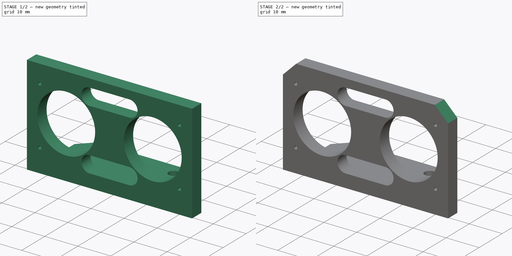
[diagram: build sequence overview — one tinted view per stage of 2, left to right]
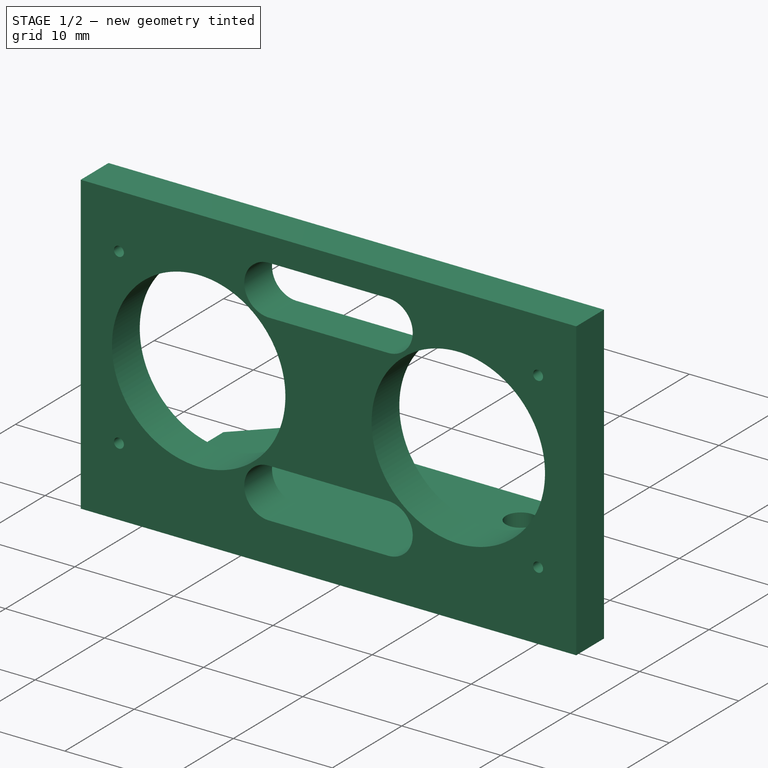
[diagram: stage 1 of 2 — iso view after this stage's code; geometry added in this stage tinted green]
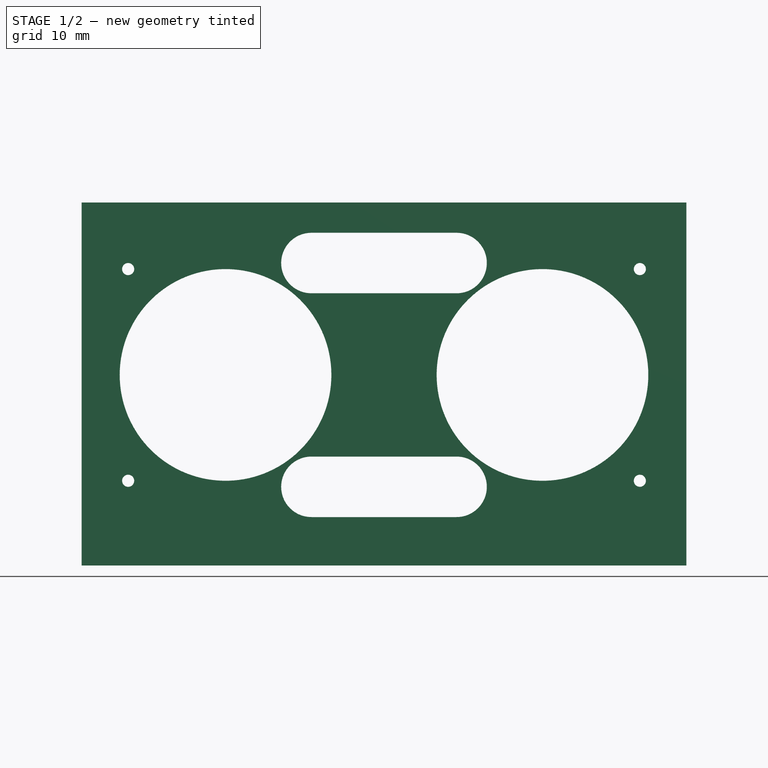
[diagram: stage 1 of 2 — front view after this stage's code; geometry added in this stage tinted green]
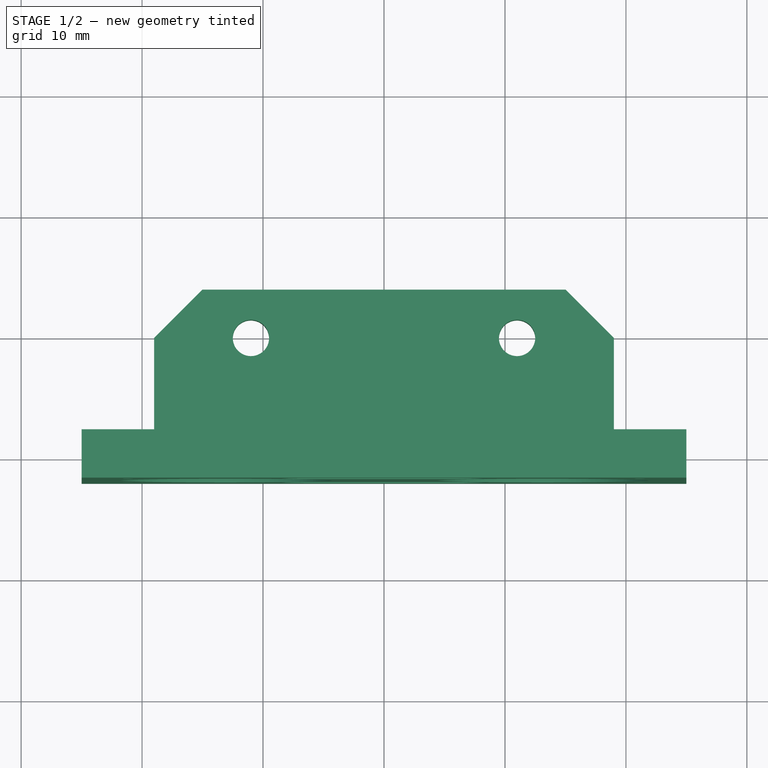
[diagram: stage 1 of 2 — top view after this stage's code; geometry added in this stage tinted green]
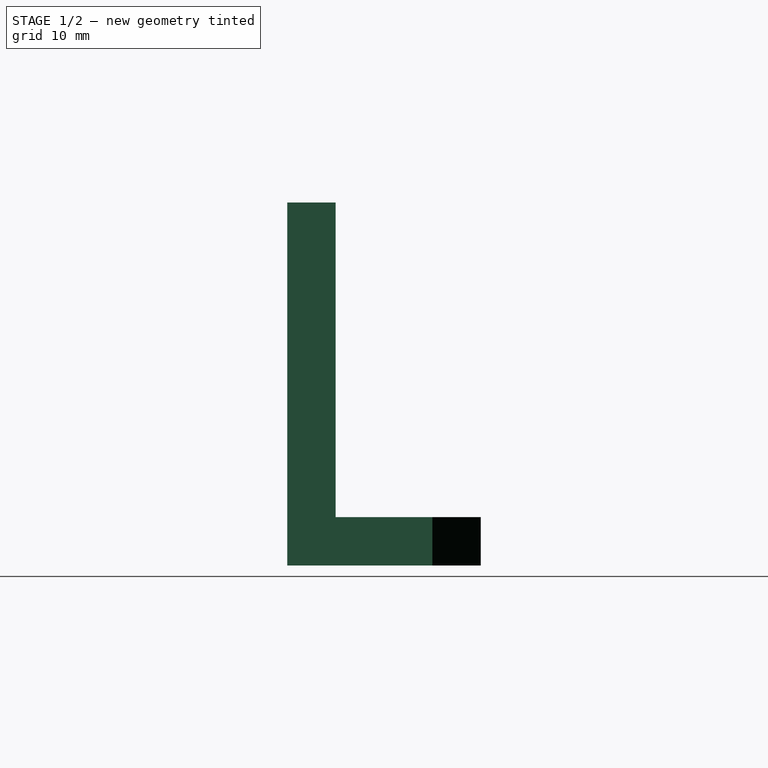
[diagram: stage 1 of 2 — right view after this stage's code; geometry added in this stage tinted green]
FCSTD DOCUMENT  (FreeCAD 0.21R33771 (Git))
Label: Ultrasonics_holder2
License: All rights reserved
LicenseURL: http://en.wikipedia.org/wiki/All_rights_reserved
objects: Sketcher::SketchObject×2, PartDesign::Pad×2, PartDesign::Fillet×1, PartDesign::Chamfer×1, PartDesign::Body×1
note: 11 computed .brp shape members not serialized (recipe doc carries the construction recipe); baked Part::Feature solids carry a one-line shape summary decoded from their .brp

FEATURE [Sketcher::SketchObject] Sketch
  FullyConstrained = true
  MapMode = 5
  Support = -> [XY_Plane]
  sketch-geometry (10):
    g0: Circle CenterX=-11 CenterY=0 CenterZ=0 NormalX=0 NormalY=0 NormalZ=1 AngleXU=0 Radius=1.5
    g1: Circle CenterX=11 CenterY=0 CenterZ=0 NormalX=0 NormalY=0 NormalZ=1 AngleXU=0 Radius=1.5
    g2: LineSegment StartX=-11 StartY=0 StartZ=0 EndX=0 EndY=0 EndZ=0
    g3: LineSegment StartX=11 StartY=0 StartZ=0 EndX=0 EndY=0 EndZ=0
    g4: LineSegment StartX=-15 StartY=4 StartZ=0 EndX=15 EndY=4 EndZ=0
    g5: LineSegment StartX=19 StartY=3.931e-13 StartZ=0 EndX=19 EndY=-8 EndZ=0
    g6: LineSegment StartX=19 StartY=-8 StartZ=0 EndX=-19 EndY=-8 EndZ=0
    g7: LineSegment StartX=-19 StartY=-8 StartZ=0 EndX=-19 EndY=3.917e-13 EndZ=0
    g8: LineSegment StartX=-19 StartY=3.917e-13 StartZ=0 EndX=-15 EndY=4 EndZ=0
    g9: LineSegment StartX=19 StartY=3.931e-13 StartZ=0 EndX=15 EndY=4 EndZ=0
  constraints (28):
    c: PointOnObject(g1,g-1)
    c: Equal(g0,g1)
    c: Coincident(g3,g1)
    c: Coincident(g3,g2)
    c: Equal(g2,g3)
    c: Coincident(g0,g2)
    c: Coincident(g2,g-1)
    c: DistanceX(g0,g1) = 22
    c: Diameter(g0) = 3
    c: Coincident(g5,g6)
    c: Coincident(g6,g7)
    c: Horizontal(g4)
    c: Horizontal(g6)
    c: Vertical(g5)
    c: Vertical(g7)
    c: Coincident(g4,g8)
    c: Coincident(g7,g8)
    c: Coincident(g4,g9)
    c: Coincident(g5,g9)
    c: Angle(g7,g8) = 2.35619
    c: Angle(g9,g5) = 2.35619
    c: DistanceX(g7,g4) = 4
    c: DistanceX(g4,g5) = 4
    c: DistanceY(g2,g4) = 4
    c: DistanceY(g6,g2) = 8
    c: DistanceX(g1,g5) = 8
    c: DistanceX(g6,g0) = 8
    c: Horizontal(g2)
FEATURE [PartDesign::Pad] Pad
  Direction = (0,0,1)
  Length = 4
  Length2 = 10
  Profile = -> Sketch
  ReferenceAxis = -> Sketch [N_Axis]
  Type = 0
FEATURE [Sketcher::SketchObject] Sketch001
  ExternalGeometry = -> [Pad]
  FullyConstrained = true
  MapMode = 5
  Placement = pos=(0,-8,0) rot=(1,0,0;1.5708rad)
  Support = -> [Pad]
  sketch-geometry (31):
    g0: LineSegment StartX=-25 StartY=30 StartZ=0 EndX=25 EndY=30 EndZ=0
    g1: LineSegment StartX=25 StartY=30 StartZ=0 EndX=25 EndY=0 EndZ=0
    g2: LineSegment StartX=-25 StartY=0 StartZ=0 EndX=-25 EndY=30 EndZ=0
    g3: LineSegment StartX=25 StartY=0 StartZ=0 EndX=0 EndY=0 EndZ=0
    g4: LineSegment StartX=0 StartY=0 StartZ=0 EndX=-25 EndY=0 EndZ=0
    g5: LineSegment StartX=-21.15 StartY=24.5 StartZ=0 EndX=21.15 EndY=24.5 EndZ=0
    g6: LineSegment StartX=21.15 StartY=24.5 StartZ=0 EndX=21.15 EndY=7 EndZ=0
    g7: LineSegment StartX=-21.15 StartY=7 StartZ=0 EndX=-21.15 EndY=24.5 EndZ=0
    g8: Circle CenterX=-21.15 CenterY=24.5 CenterZ=0 NormalX=0 NormalY=0 NormalZ=1 AngleXU=0 Radius=0.5
    g9: Circle CenterX=-21.15 CenterY=7 CenterZ=0 NormalX=0 NormalY=0 NormalZ=1 AngleXU=0 Radius=0.5
    g10: Circle CenterX=21.15 CenterY=7 CenterZ=0 NormalX=0 NormalY=0 NormalZ=1 AngleXU=0 Radius=0.5
    g11: Circle CenterX=21.15 CenterY=24.5 CenterZ=0 NormalX=0 NormalY=0 NormalZ=1 AngleXU=0 Radius=0.5
    g12: LineSegment StartX=21.15 StartY=7 StartZ=0 EndX=0 EndY=7 EndZ=0
    g13: LineSegment StartX=0 StartY=7 StartZ=0 EndX=-21.15 EndY=7 EndZ=0
    g14: LineSegment StartX=0 StartY=0 StartZ=0 EndX=0 EndY=7 EndZ=0
    g15: LineSegment StartX=-13.1 StartY=15.75 StartZ=0 EndX=0 EndY=15.75 EndZ=0
    g16: LineSegment StartX=0 StartY=15.75 StartZ=0 EndX=13.1 EndY=15.75 EndZ=0
    g17: LineSegment StartX=0 StartY=7 StartZ=0 EndX=0 EndY=15.75 EndZ=0
    g18: LineSegment StartX=0 StartY=15.75 StartZ=0 EndX=0 EndY=24.5 EndZ=0
    g19: LineSegment StartX=-6 StartY=4 StartZ=0 EndX=0 EndY=4 EndZ=0
    g20: LineSegment StartX=6 StartY=4 StartZ=0 EndX=0 EndY=4 EndZ=0
    g21: LineSegment StartX=-6 StartY=27.5 StartZ=0 EndX=0 EndY=27.5 EndZ=0
    g22: LineSegment StartX=0 StartY=27.5 StartZ=0 EndX=6 EndY=27.5 EndZ=0
    g23: ArcOfCircle CenterX=-6 CenterY=25 CenterZ=0 NormalX=0 NormalY=0 NormalZ=1 AngleXU=0 Radius=2.5 StartAngle=1.5708 EndAngle=4.71239
    g24: ArcOfCircle CenterX=6 CenterY=25 CenterZ=0 NormalX=0 NormalY=0 NormalZ=1 AngleXU=0 Radius=2.5 StartAngle=4.71239 EndAngle=7.85398
    g25: ArcOfCircle CenterX=-6 CenterY=6.5 CenterZ=0 NormalX=0 NormalY=0 NormalZ=1 AngleXU=0 Radius=2.5 StartAngle=1.5708 EndAngle=4.71239
    g26: ArcOfCircle CenterX=6 CenterY=6.5 CenterZ=0 NormalX=0 NormalY=0 NormalZ=1 AngleXU=0 Radius=2.5 StartAngle=4.71239 EndAngle=7.85398
    g27: LineSegment StartX=-6 StartY=9 StartZ=0 EndX=6 EndY=9 EndZ=0
    g28: LineSegment StartX=-6 StartY=22.5 StartZ=0 EndX=6 EndY=22.5 EndZ=0
    g29: Circle CenterX=-13.1 CenterY=15.75 CenterZ=0 NormalX=0 NormalY=0 NormalZ=1 AngleXU=0 Radius=8.75
    g30: Circle CenterX=13.1 CenterY=15.75 CenterZ=0 NormalX=0 NormalY=0 NormalZ=1 AngleXU=0 Radius=8.75
  constraints (83):
    c: Coincident(g0,g1)
    c: Coincident(g1,g3)
    c: Coincident(g4,g2)
    c: Coincident(g2,g0)
    c: Horizontal(g0)
    c: Vertical(g1)
    c: Vertical(g2)
    c: Coincident(g3,g4)
    c: Horizontal(g3)
    c: Horizontal(g4)
    c: Equal(g4,g3)
    c: Coincident(g3,g-1)
    c: DistanceX(g2,g1) = 50
    c: DistanceY(g2,g2) = 30
    c: Coincident(g5,g6)
    c: Coincident(g6,g12)
    c: Coincident(g13,g7)
    c: Coincident(g7,g5)
    c: Horizontal(g5)
    c: Vertical(g6)
    c: Vertical(g7)
    c: DistanceY(g7,g7) = 17.5
    c: DistanceX(g5,g5) = 42.3
    c: Coincident(g8,g5)
    c: Coincident(g9,g13)
    c: Coincident(g10,g6)
    c: Coincident(g11,g5)
    c: Equal(g8,g9)
    c: Equal(g9,g11)
    c: Equal(g11,g10)
    c: Diameter(g8) = 1
    c: Coincident(g12,g13)
    c: Horizontal(g12)
    c: Horizontal(g13)
    c: Equal(g13,g12)
    c: Coincident(g14,g3)
    c: PointOnObject(g14,g-2)
    c: Coincident(g14,g12)
    c: DistanceY(g-3,g12) = 3
    c: Horizontal(g15)
    c: Coincident(g16,g15)
    c: Horizontal(g16)
    c: Equal(g15,g16)
    c: Coincident(g17,g12)
    c: Coincident(g17,g15)
    c: Vertical(g17)
    c: Coincident(g18,g15)
    c: PointOnObject(g18,g5)
    c: Vertical(g18)
    c: Equal(g18,g17)
    c: Coincident(g20,g19)
    c: Horizontal(g20)
    c: PointOnObject(g19,g14)
    c: Equal(g19,g20)
    c: Coincident(g21,g22)
    c: Horizontal(g21)
    c: Horizontal(g22)
    c: PointOnObject(g21,g-2)
    c: Equal(g21,g22)
    c: DistanceY(g18,g21) = 3
    c: Tangent(g21,g23) = 1.5708
    c: Tangent(g22,g24) = 1.5708
    c: Equal(g23,g24)
    c: DistanceX(g23,g24) = 12
    c: Tangent(g19,g25) = -1.5708
    c: Tangent(g20,g26) = 1.5708
    c: Equal(g25,g26)
    c: Equal(g26,g23)
    c: PointOnObject(g19,g-3)
    c: Horizontal(g19)
    c: Equal(g19,g21)
    c: Horizontal(g27)
    c: Tangent(g27,g25) = 1.5708
    c: Coincident(g27,g26)
    c: Horizontal(g28)
    c: Coincident(g24,g28)
    c: Tangent(g28,g23) = -1.5708
    c: DistanceY(g23,g21) = 5
    c: Coincident(g29,g15)
    c: Coincident(g30,g16)
    c: Equal(g29,g30)
    c: Diameter(g29) = 17.5
    c: DistanceX(g29,g30) = 26.2
FEATURE [PartDesign::Pad] Pad001
  BaseFeature = -> Pad
  Direction = (0,-1,2e-16)
  Length = 4
  Length2 = 10
  Profile = -> Sketch001
  ReferenceAxis = -> Sketch001 [N_Axis]
  Type = 0
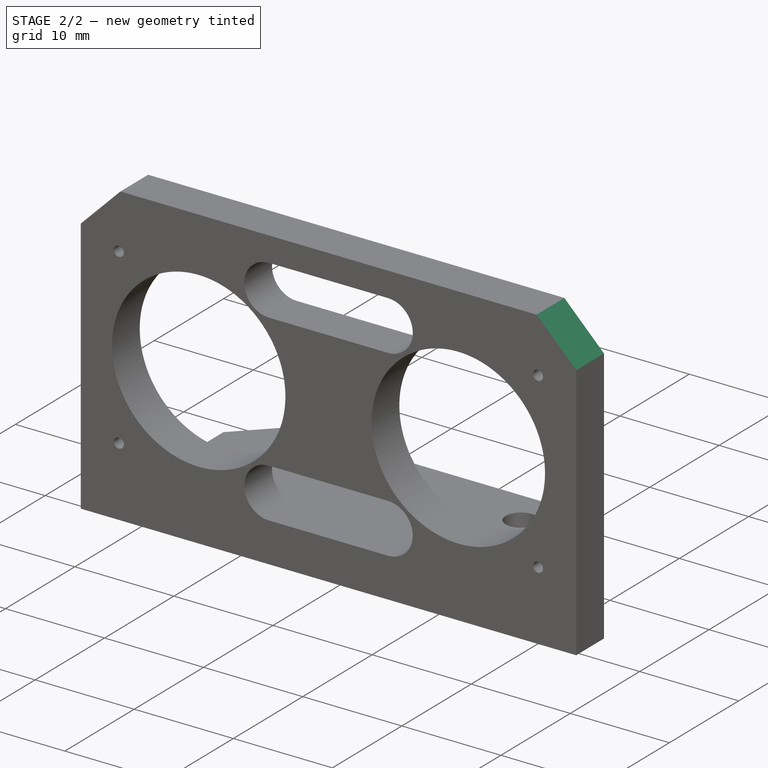
[diagram: stage 2 of 2 — iso view after this stage's code; geometry added in this stage tinted green]
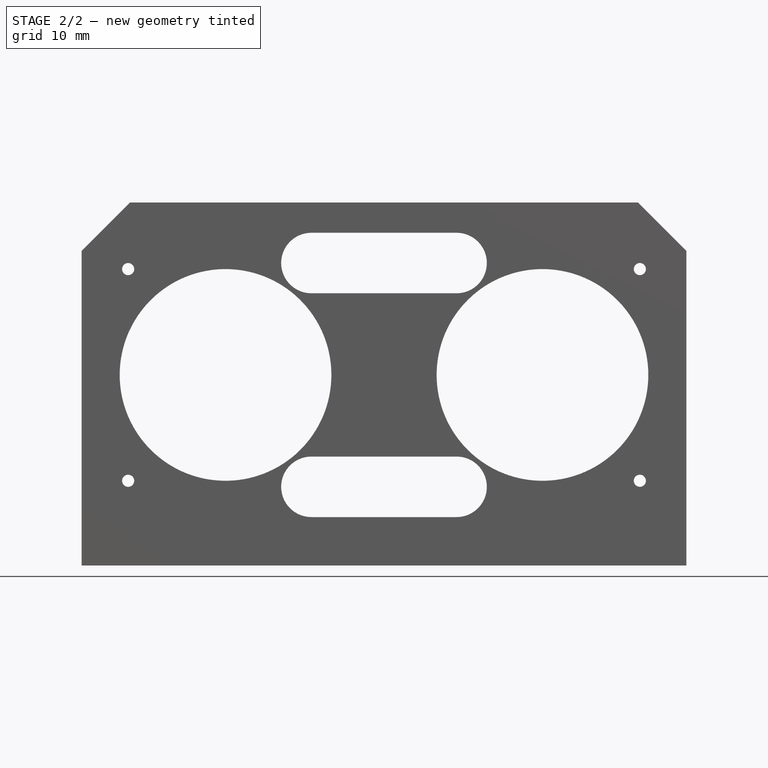
[diagram: stage 2 of 2 — front view after this stage's code; geometry added in this stage tinted green]
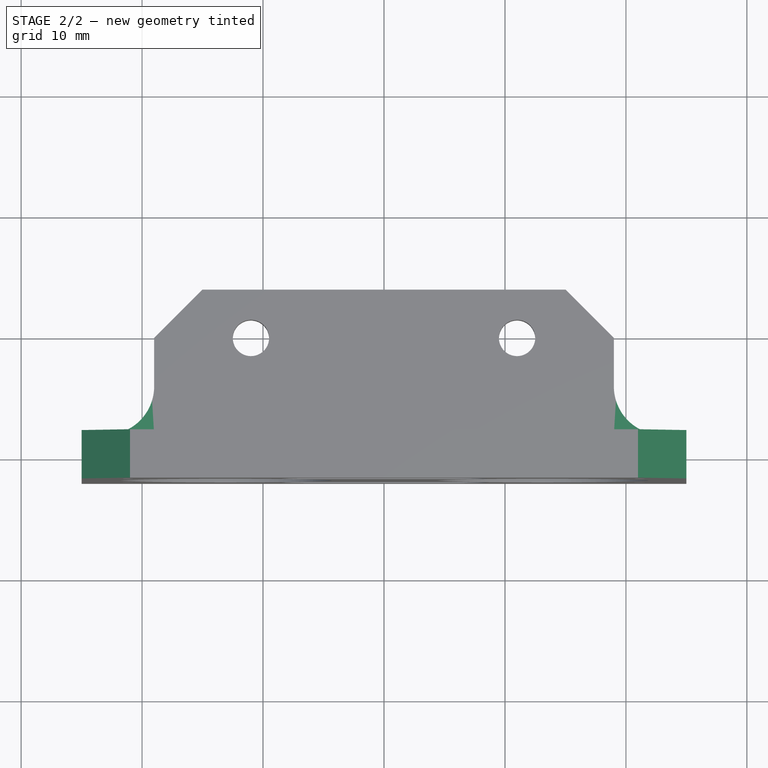
[diagram: stage 2 of 2 — top view after this stage's code; geometry added in this stage tinted green]
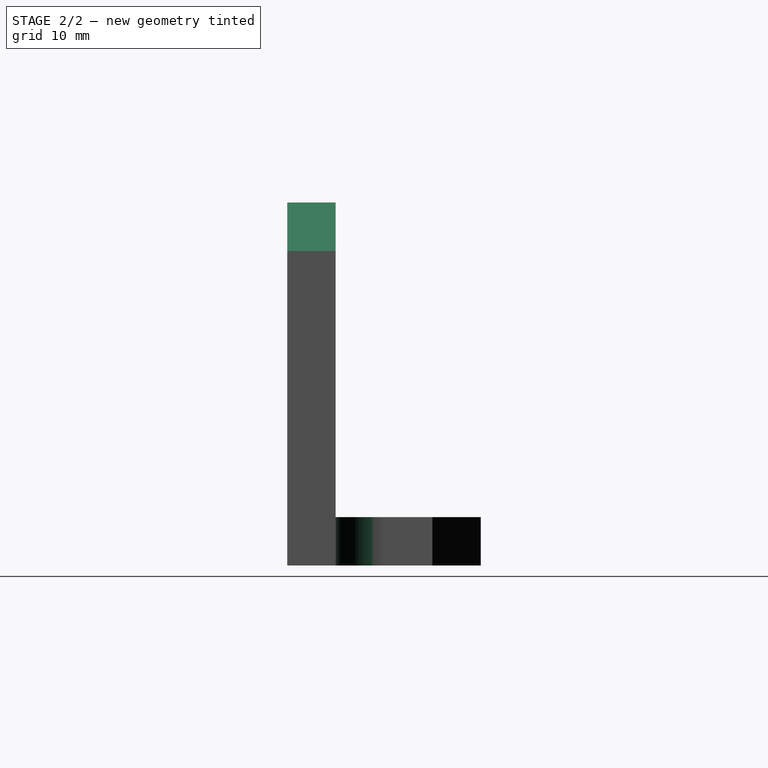
[diagram: stage 2 of 2 — right view after this stage's code; geometry added in this stage tinted green]
FEATURE [PartDesign::Fillet] Fillet
  Base = -> Pad001 [Edge2,Edge10]
  BaseFeature = -> Pad001
  Radius = 4
  SupportTransform = false
  UseAllEdges = false
FEATURE [PartDesign::Chamfer] Chamfer
  Angle = 45
  Base = -> Fillet [Edge86,Edge68]
  BaseFeature = -> Fillet
  ChamferType = 0
  FlipDirection = false
  Size = 4
  Size2 = 1
  SupportTransform = false
  UseAllEdges = false
FEATURE [PartDesign::Body] Body
  Group = -> [Sketch,Pad,Sketch001,Pad001,Fillet,Chamfer]
  Origin = -> Origin
  Placement = pos=(0,0,0) rot=(1,0,0;1.5708rad)
  Tip = -> Chamfer
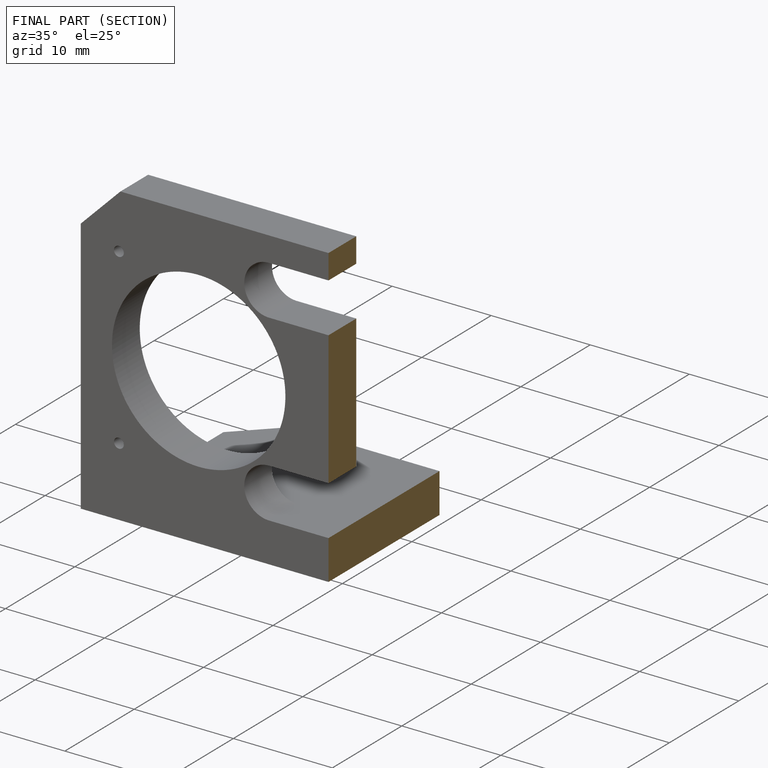
[diagram: finished part — half-section view (interior)]
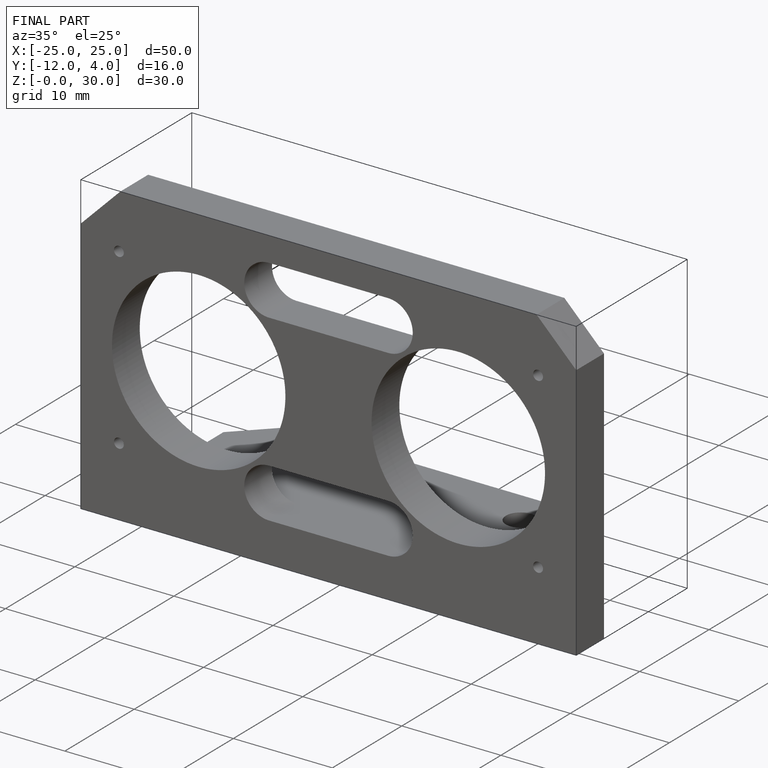
[diagram: finished part — iso view with bounding-box wireframe]
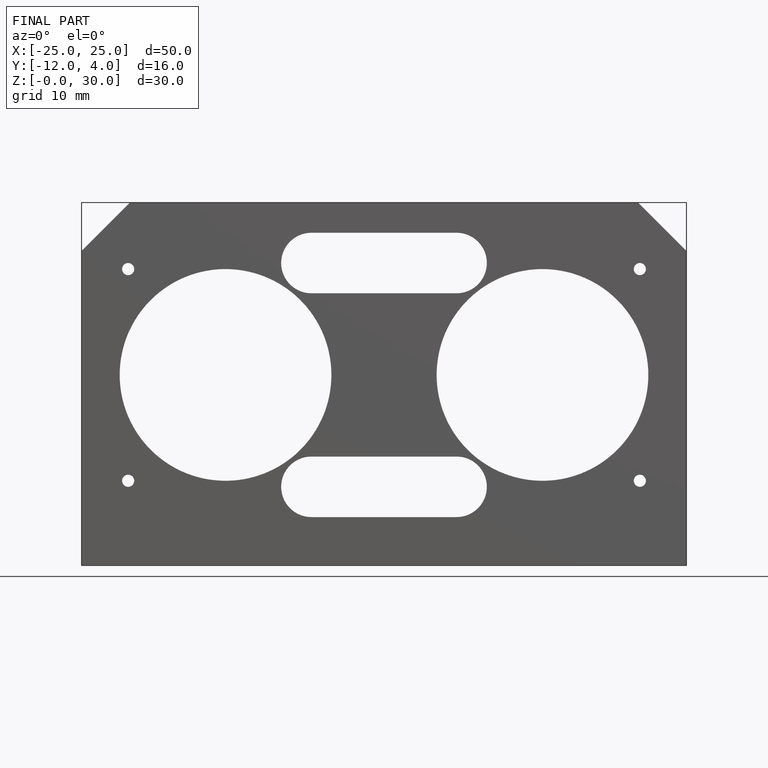
[diagram: finished part — front view with bounding-box wireframe]
